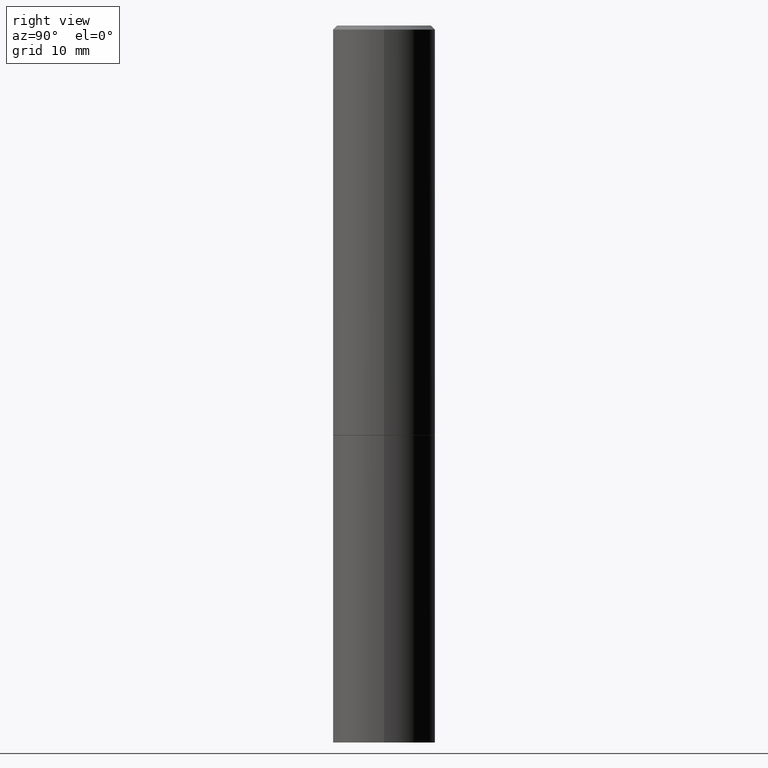
[diagram: clean part render]
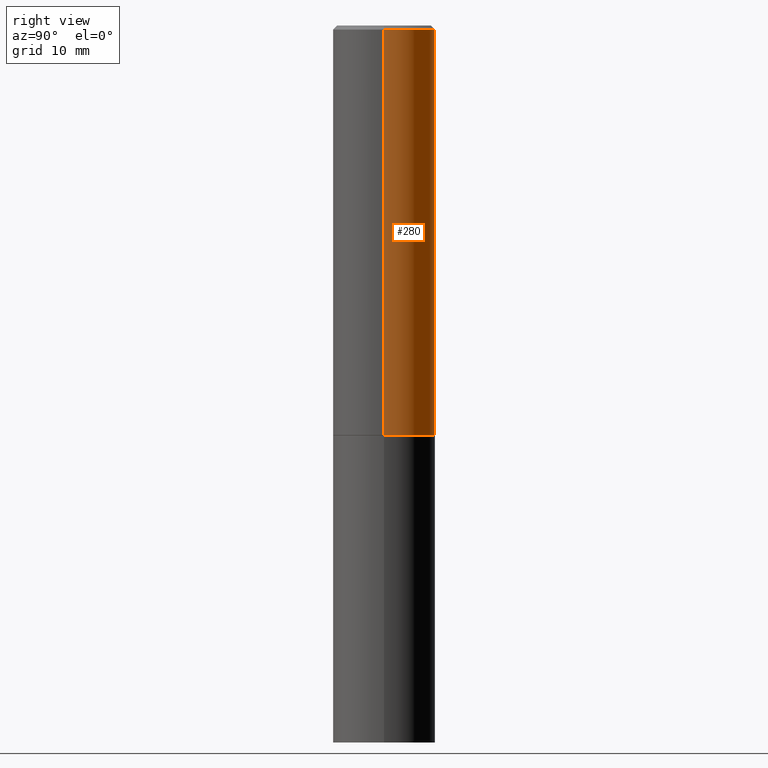
[diagram: same view with one face highlighted and labeled with its STEP entity id]
A machine part, right view. The second image highlights one B-rep face of the part: STEP entity #280.
In plain terms, the highlighted cylindrical surface (partial cylindrical patch) has radius 6.35 mm, axis along (-0, 0, 1).
Its self-contained STEP definition (entity closure, byte-faithful):
#31 = EDGE_CURVE ( 'NONE', #59, #258, #118, .T. ) ;
#37 = DIRECTION ( 'NONE',  ( -2.445468806185136597E-29, 3.491481338843145583E-15, 1.000000000000000000 ) ) ;
#46 = CARTESIAN_POINT ( 'NONE',  ( 4.890937612370288923E-31, -6.982962677686312563E-17, -0.02000000000000006287 ) ) ;
#59 = VERTEX_POINT ( 'NONE', #97 ) ;
#63 = FACE_OUTER_BOUND ( 'NONE', #240, .T. ) ;
#74 = EDGE_CURVE ( 'NONE', #171, #195, #317, .T. ) ;
#89 = CARTESIAN_POINT ( 'NONE',  ( 0.2499999999999999167, -1.745740669421566283E-15, 1.219044193948983668E-29 ) ) ;
#97 = CARTESIAN_POINT ( 'NONE',  ( 0.2500000000000000555, -8.725211865769014047E-15, -1.998999999999999888 ) ) ;
#98 = DIRECTION ( 'NONE',  ( -2.445468806185136597E-29, 3.491481338843145583E-15, 1.000000000000000000 ) ) ;
#118 = LINE ( 'NONE', #89, #259 ) ;
#145 = AXIS2_PLACEMENT_3D ( 'NONE', #220, #192, #329 ) ;
#158 = CARTESIAN_POINT ( 'NONE',  ( 0.2499999999999998057, -1.784954126219744611E-15, -0.02000000000000006287 ) ) ;
#162 = CIRCLE ( 'NONE', #194, 0.2499999999999998057 ) ;
#171 = VERTEX_POINT ( 'NONE', #276 ) ;
#173 = EDGE_CURVE ( 'NONE', #258, #195, #162, .T. ) ;
#181 = CYLINDRICAL_SURFACE ( 'NONE', #182, 0.2499999999999999167 ) ;
#182 = AXIS2_PLACEMENT_3D ( 'NONE', #247, #37, #308 ) ;
#192 = DIRECTION ( 'NONE',  ( -2.445468806185136597E-29, 3.491481338843145583E-15, 1.000000000000000000 ) ) ;
#194 = AXIS2_PLACEMENT_3D ( 'NONE', #46, #98, #318 ) ;
#195 = VERTEX_POINT ( 'NONE', #213 ) ;
#208 = DIRECTION ( 'NONE',  ( -2.445468806185136877E-29, 3.491481338843145188E-15, 1.000000000000000000 ) ) ;
#213 = CARTESIAN_POINT ( 'NONE',  ( -0.2499999999999998057, 1.675911042644702196E-15, -0.02000000000000006287 ) ) ;
#220 = CARTESIAN_POINT ( 'NONE',  ( 4.888492143564087591E-29, -6.979471196347447369E-15, -1.998999999999999888 ) ) ;
#221 = CARTESIAN_POINT ( 'NONE',  ( -0.2499999999999999167, 1.776356839400249873E-15, -1.229733772563726165E-29 ) ) ;
#240 = EDGE_LOOP ( 'NONE', ( #320, #297, #246, #345 ) ) ;
#246 = ORIENTED_EDGE ( 'NONE', *, *, #173, .F. ) ;
#247 = CARTESIAN_POINT ( 'NONE',  ( 0.000000000000000000, 0.000000000000000000, 0.000000000000000000 ) ) ;
#258 = VERTEX_POINT ( 'NONE', #158 ) ;
#259 = VECTOR ( 'NONE', #208, 39.37007874015748143 ) ;
#276 = CARTESIAN_POINT ( 'NONE',  ( -0.2500000000000000555, -1.748293572161903489E-15, -1.998999999999999888 ) ) ;
#280 = ADVANCED_FACE ( 'NONE', ( #63 ), #181, .T. ) ;
#285 = CIRCLE ( 'NONE', #145, 0.2500000000000000555 ) ;
#297 = ORIENTED_EDGE ( 'NONE', *, *, #74, .T. ) ;
#304 = DIRECTION ( 'NONE',  ( -2.445468806185136877E-29, 3.491481338843145188E-15, 1.000000000000000000 ) ) ;
#308 = DIRECTION ( 'NONE',  ( 1.000000000000000000, -6.982962677686267499E-15, 4.876176775795936353E-29 ) ) ;
#317 = LINE ( 'NONE', #221, #334 ) ;
#318 = DIRECTION ( 'NONE',  ( 1.000000000000000000, -6.982962677686266711E-15, 0.000000000000000000 ) ) ;
#320 = ORIENTED_EDGE ( 'NONE', *, *, #360, .T. ) ;
#329 = DIRECTION ( 'NONE',  ( 1.000000000000000000, -6.982962677686265133E-15, 0.000000000000000000 ) ) ;
#334 = VECTOR ( 'NONE', #304, 39.37007874015748143 ) ;
#345 = ORIENTED_EDGE ( 'NONE', *, *, #31, .F. ) ;
#360 = EDGE_CURVE ( 'NONE', #59, #171, #285, .T. ) ;